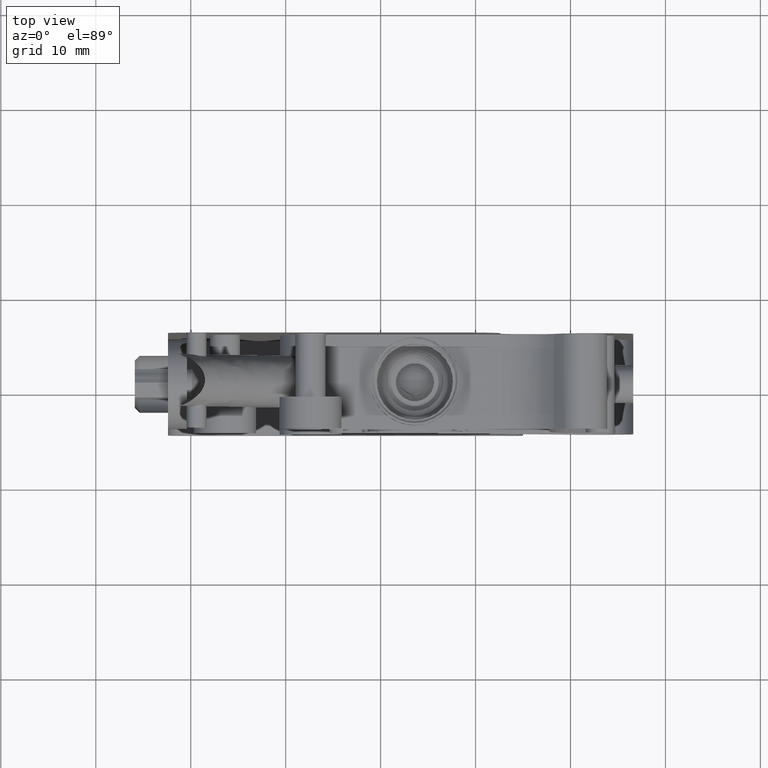
[diagram: clean part render]
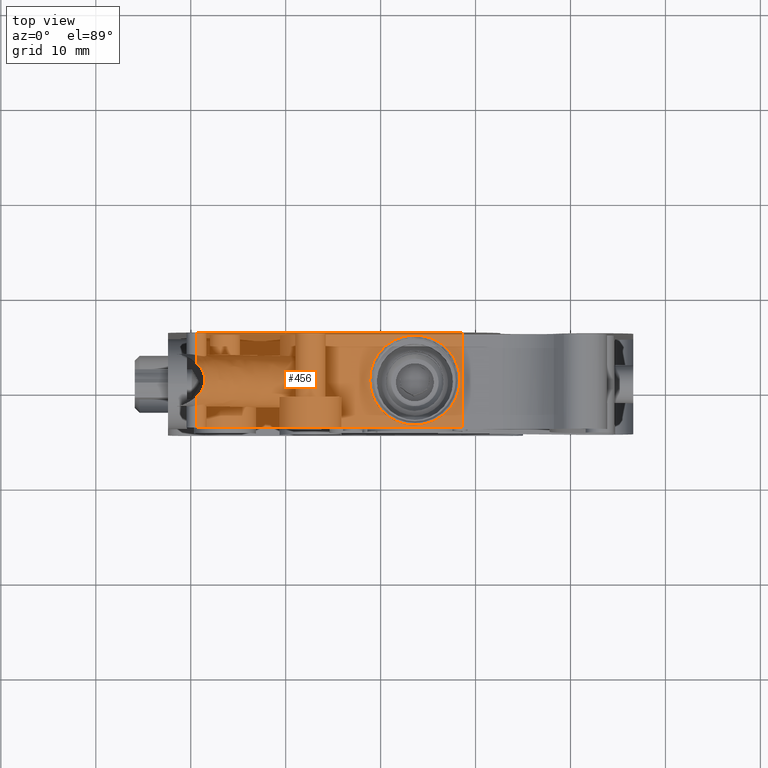
[diagram: same view with one face highlighted and labeled with its STEP entity id]
A machine part, top view. The second image highlights one B-rep face of the part: STEP entity #456.
In plain terms, the highlighted face is a freeform B-spline surface patch.
Its self-contained STEP definition (entity closure, byte-faithful):
#265=FACE_BOUND('',#1035,.T.);
#456=ADVANCED_FACE('',(#737,#265),#10284,.T.);
#737=FACE_OUTER_BOUND('',#1034,.T.);
#1034=EDGE_LOOP('',(#1984,#1985,#1986,#1987,#1988,#1989));
#1035=EDGE_LOOP('',(#1990,#1991,#1992));
#1984=ORIENTED_EDGE('',*,*,#8693,.F.);
#1985=ORIENTED_EDGE('',*,*,#8708,.F.);
#1986=ORIENTED_EDGE('',*,*,#8713,.T.);
#1987=ORIENTED_EDGE('',*,*,#8714,.T.);
#1988=ORIENTED_EDGE('',*,*,#8715,.T.);
#1989=ORIENTED_EDGE('',*,*,#8710,.F.);
#1990=ORIENTED_EDGE('',*,*,#8716,.T.);
#1991=ORIENTED_EDGE('',*,*,#8717,.T.);
#1992=ORIENTED_EDGE('',*,*,#8718,.T.);
#3475=PCURVE('',#10423,#4998);
#3500=PCURVE('',#10425,#5023);
#3504=PCURVE('',#10426,#5027);
#3507=PCURVE('',#10284,#5030);
#3508=PCURVE('',#10284,#5031);
#3509=PCURVE('',#10284,#5032);
#3510=PCURVE('',#10284,#5033);
#3511=PCURVE('',#10284,#5034);
#3512=PCURVE('',#10284,#5035);
#3513=PCURVE('',#10284,#5036);
#3514=PCURVE('',#10284,#5037);
#3515=PCURVE('',#10284,#5038);
#3582=PCURVE('',#10436,#5105);
#3585=PCURVE('',#10437,#5108);
#3590=PCURVE('',#10437,#5113);
#3670=PCURVE('',#10445,#5193);
#3786=PCURVE('',#10307,#5309);
#3862=PCURVE('',#10308,#5385);
#4998=DEFINITIONAL_REPRESENTATION('',(#6658),#38234);
#5023=DEFINITIONAL_REPRESENTATION('',(#6696),#38234);
#5027=DEFINITIONAL_REPRESENTATION('',(#6702),#38234);
#5030=DEFINITIONAL_REPRESENTATION('',(#9364),#38234);
#5031=DEFINITIONAL_REPRESENTATION('',(#6706),#38234);
#5032=DEFINITIONAL_REPRESENTATION('',(#6708),#38234);
#5033=DEFINITIONAL_REPRESENTATION('',(#6710),#38234);
#5034=DEFINITIONAL_REPRESENTATION('',(#6712),#38234);
#5035=DEFINITIONAL_REPRESENTATION('',(#6713),#38234);
#5036=DEFINITIONAL_REPRESENTATION('',(#9366),#38234);
#5037=DEFINITIONAL_REPRESENTATION('',(#9368),#38234);
#5038=DEFINITIONAL_REPRESENTATION('',(#9370),#38234);
#5105=DEFINITIONAL_REPRESENTATION('',(#6787),#38234);
#5108=DEFINITIONAL_REPRESENTATION('',(#6791),#38234);
#5113=DEFINITIONAL_REPRESENTATION('',(#6796),#38234);
#5193=DEFINITIONAL_REPRESENTATION('',(#6895),#38234);
#5309=DEFINITIONAL_REPRESENTATION('',(#7031),#38234);
#5385=DEFINITIONAL_REPRESENTATION('',(#7058),#38234);
#6658=B_SPLINE_CURVE_WITH_KNOTS('',3,(#17195,#17196,#17197,#17198,#17199,
#17200,#17201,#17202,#17203,#17204,#17205,#17206,#17207,#17208),
 .UNSPECIFIED.,.F.,.F.,(4,2,2,2,2,2,4),(-23.1629799765167,-22.426872541957,
-21.808255514192,-20.8573078773078,-19.9063602404228,-19.2877432126578,
-18.5516357780982),.UNSPECIFIED.);
#6695=B_SPLINE_CURVE_WITH_KNOTS('',1,(#17471,#17472),.UNSPECIFIED.,.F.,
 .F.,(2,2),(-3.2502177992676,0.),.UNSPECIFIED.);
#6696=B_SPLINE_CURVE_WITH_KNOTS('',1,(#17473,#17474),.UNSPECIFIED.,.F.,
 .F.,(2,2),(-3.2502177992676,0.),.UNSPECIFIED.);
#6701=B_SPLINE_CURVE_WITH_KNOTS('',1,(#17507,#17508),.UNSPECIFIED.,.F.,
 .F.,(2,2),(-3.2502177992676,0.),.UNSPECIFIED.);
#6702=B_SPLINE_CURVE_WITH_KNOTS('',1,(#17509,#17510),.UNSPECIFIED.,.F.,
 .F.,(2,2),(-3.2502177992676,0.),.UNSPECIFIED.);
#6706=B_SPLINE_CURVE_WITH_KNOTS('',1,(#17525,#17526),.UNSPECIFIED.,.F.,
 .F.,(2,2),(-3.2502177992676,0.),.UNSPECIFIED.);
#6707=B_SPLINE_CURVE_WITH_KNOTS('',1,(#17527,#17528),.UNSPECIFIED.,.F.,
 .F.,(2,2),(0.,28.),.UNSPECIFIED.);
#6708=B_SPLINE_CURVE_WITH_KNOTS('',1,(#17529,#17530),.UNSPECIFIED.,.F.,
 .F.,(2,2),(0.,28.),.UNSPECIFIED.);
#6709=B_SPLINE_CURVE_WITH_KNOTS('',1,(#17531,#17532),.UNSPECIFIED.,.F.,
 .F.,(2,2),(-10.,0.),.UNSPECIFIED.);
#6710=B_SPLINE_CURVE_WITH_KNOTS('',1,(#17533,#17534),.UNSPECIFIED.,.F.,
 .F.,(2,2),(-10.,0.),.UNSPECIFIED.);
#6711=B_SPLINE_CURVE_WITH_KNOTS('',1,(#17535,#17536),.UNSPECIFIED.,.F.,
 .F.,(2,2),(0.,28.),.UNSPECIFIED.);
#6712=B_SPLINE_CURVE_WITH_KNOTS('',1,(#17537,#17538),.UNSPECIFIED.,.F.,
 .F.,(2,2),(0.,28.),.UNSPECIFIED.);
#6713=B_SPLINE_CURVE_WITH_KNOTS('',1,(#17539,#17540),.UNSPECIFIED.,.F.,
 .F.,(2,2),(-3.2502177992676,0.),.UNSPECIFIED.);
#6787=B_SPLINE_CURVE_WITH_KNOTS('',1,(#18002,#18003),.UNSPECIFIED.,.F.,
 .F.,(2,2),(0.,7.46128255227576),.UNSPECIFIED.);
#6791=B_SPLINE_CURVE_WITH_KNOTS('',1,(#18010,#18011),.UNSPECIFIED.,.F.,
 .F.,(2,2),(7.46128255227576,14.9225651045515),.UNSPECIFIED.);
#6796=B_SPLINE_CURVE_WITH_KNOTS('',1,(#18020,#18021),.UNSPECIFIED.,.F.,
 .F.,(2,2),(0.,14.9225651045515),.UNSPECIFIED.);
#6895=B_SPLINE_CURVE_WITH_KNOTS('',1,(#18533,#18534),.UNSPECIFIED.,.F.,
 .F.,(2,2),(-10.,0.),.UNSPECIFIED.);
#7031=B_SPLINE_CURVE_WITH_KNOTS('',1,(#18957,#18958),.UNSPECIFIED.,.F.,
 .F.,(2,2),(0.,28.),.UNSPECIFIED.);
#7058=B_SPLINE_CURVE_WITH_KNOTS('',1,(#19218,#19219),.UNSPECIFIED.,.F.,
 .F.,(2,2),(0.,28.),.UNSPECIFIED.);
#7889=SURFACE_CURVE('',#9360,(#3475,#3507),.PCURVE_S1.);
#7904=SURFACE_CURVE('',#6695,(#3500,#3508),.PCURVE_S1.);
#7906=SURFACE_CURVE('',#6701,(#3504,#3512),.PCURVE_S1.);
#7909=SURFACE_CURVE('',#6707,(#3509,#3862),.PCURVE_S1.);
#7910=SURFACE_CURVE('',#6709,(#3510,#3670),.PCURVE_S1.);
#7911=SURFACE_CURVE('',#6711,(#3511,#3786),.PCURVE_S1.);
#7912=SURFACE_CURVE('',#9365,(#3513,#3582),.PCURVE_S1.);
#7913=SURFACE_CURVE('',#9367,(#3514,#3585),.PCURVE_S1.);
#7914=SURFACE_CURVE('',#9369,(#3515,#3590),.PCURVE_S1.);
#8693=EDGE_CURVE('',#9997,#9998,#7889,.T.);
#8708=EDGE_CURVE('',#10005,#9997,#7904,.T.);
#8710=EDGE_CURVE('',#9998,#10006,#7906,.T.);
#8713=EDGE_CURVE('',#10005,#10008,#7909,.T.);
#8714=EDGE_CURVE('',#10008,#10009,#7910,.T.);
#8715=EDGE_CURVE('',#10009,#10006,#7911,.T.);
#8716=EDGE_CURVE('',#10011,#10044,#7912,.T.);
#8717=EDGE_CURVE('',#10044,#10010,#7913,.T.);
#8718=EDGE_CURVE('',#10010,#10011,#7914,.T.);
#9360=(
BOUNDED_CURVE()
B_SPLINE_CURVE(2,(#17190,#17191,#17192,#17193,#17194),.UNSPECIFIED.,.F.,
 .F.)
B_SPLINE_CURVE_WITH_KNOTS((3,2,3),(-23.1629799765167,-20.8573078773074,
-18.5516357780982),.UNSPECIFIED.)
CURVE()
GEOMETRIC_REPRESENTATION_ITEM()
RATIONAL_B_SPLINE_CURVE((1.,0.941130847824722,1.,0.941130847824723,1.))
REPRESENTATION_ITEM('')
);
#9364=(
BOUNDED_CURVE()
B_SPLINE_CURVE(2,(#17520,#17521,#17522,#17523,#17524),.UNSPECIFIED.,.F.,
 .F.)
B_SPLINE_CURVE_WITH_KNOTS((3,2,3),(-23.1629799765167,-20.8573078773074,
-18.5516357780982),.UNSPECIFIED.)
CURVE()
GEOMETRIC_REPRESENTATION_ITEM()
RATIONAL_B_SPLINE_CURVE((1.,0.941130847824722,1.,0.941130847824723,1.))
REPRESENTATION_ITEM('')
);
#9365=(
BOUNDED_CURVE()
B_SPLINE_CURVE(2,(#17541,#17542,#17543),.UNSPECIFIED.,.F.,.F.)
B_SPLINE_CURVE_WITH_KNOTS((3,3),(0.,7.46128255227576),.UNSPECIFIED.)
CURVE()
GEOMETRIC_REPRESENTATION_ITEM()
RATIONAL_B_SPLINE_CURVE((1.,0.707106781186547,1.))
REPRESENTATION_ITEM('')
);
#9366=(
BOUNDED_CURVE()
B_SPLINE_CURVE(2,(#17544,#17545,#17546),.UNSPECIFIED.,.F.,.F.)
B_SPLINE_CURVE_WITH_KNOTS((3,3),(0.,7.46128255227576),.UNSPECIFIED.)
CURVE()
GEOMETRIC_REPRESENTATION_ITEM()
RATIONAL_B_SPLINE_CURVE((1.,0.707106781186548,1.))
REPRESENTATION_ITEM('')
);
#9367=(
BOUNDED_CURVE()
B_SPLINE_CURVE(2,(#17547,#17548,#17549),.UNSPECIFIED.,.F.,.F.)
B_SPLINE_CURVE_WITH_KNOTS((3,3),(7.46128255227576,14.9225651045515),
 .UNSPECIFIED.)
CURVE()
GEOMETRIC_REPRESENTATION_ITEM()
RATIONAL_B_SPLINE_CURVE((1.,0.707106781186548,1.))
REPRESENTATION_ITEM('')
);
#9368=(
BOUNDED_CURVE()
B_SPLINE_CURVE(2,(#17550,#17551,#17552),.UNSPECIFIED.,.F.,.F.)
B_SPLINE_CURVE_WITH_KNOTS((3,3),(7.46128255227576,14.9225651045515),
 .UNSPECIFIED.)
CURVE()
GEOMETRIC_REPRESENTATION_ITEM()
RATIONAL_B_SPLINE_CURVE((1.,0.707106781186547,1.))
REPRESENTATION_ITEM('')
);
#9369=(
BOUNDED_CURVE()
B_SPLINE_CURVE(2,(#17553,#17554,#17555,#17556,#17557),.UNSPECIFIED.,.F.,
 .F.)
B_SPLINE_CURVE_WITH_KNOTS((3,2,3),(0.,7.46128255227576,14.9225651045515),
 .UNSPECIFIED.)
CURVE()
GEOMETRIC_REPRESENTATION_ITEM()
RATIONAL_B_SPLINE_CURVE((1.,0.707106781186548,1.,0.707106781186548,1.))
REPRESENTATION_ITEM('')
);
#9370=(
BOUNDED_CURVE()
B_SPLINE_CURVE(2,(#17558,#17559,#17560,#17561,#17562),.UNSPECIFIED.,.F.,
 .F.)
B_SPLINE_CURVE_WITH_KNOTS((3,2,3),(0.,7.46128255227576,14.9225651045515),
 .UNSPECIFIED.)
CURVE()
GEOMETRIC_REPRESENTATION_ITEM()
RATIONAL_B_SPLINE_CURVE((1.,0.707106781186548,1.,0.707106781186548,1.))
REPRESENTATION_ITEM('')
);
#9997=VERTEX_POINT('',#13557);
#9998=VERTEX_POINT('',#13558);
#10005=VERTEX_POINT('',#13565);
#10006=VERTEX_POINT('',#13566);
#10008=VERTEX_POINT('',#13568);
#10009=VERTEX_POINT('',#13569);
#10010=VERTEX_POINT('',#13570);
#10011=VERTEX_POINT('',#13571);
#10044=VERTEX_POINT('',#13604);
#10284=B_SPLINE_SURFACE_WITH_KNOTS('',1,1,((#12660,#12661),(#12662,#12663)),
 .UNSPECIFIED.,.F.,.F.,.F.,(2,2),(2,2),(-1.12,11.12),(-2.92000000000002,
30.92),.UNSPECIFIED.);
#10307=B_SPLINE_SURFACE_WITH_KNOTS('',1,1,((#13256,#13257),(#13258,#13259)),
 .UNSPECIFIED.,.F.,.F.,.F.,(2,2),(2,2),(-31.1921061117909,31.4478938882091),
(-31.7014055422227,27.3385944577773),.UNSPECIFIED.);
#10308=B_SPLINE_SURFACE_WITH_KNOTS('',1,1,((#13260,#13261),(#13262,#13263)),
 .UNSPECIFIED.,.F.,.F.,.F.,(2,2),(2,2),(-31.7014055422227,27.3385944577773),
(-31.1921061117909,31.4478938882091),.UNSPECIFIED.);
#10423=(
BOUNDED_SURFACE()
B_SPLINE_SURFACE(1,2,((#12588,#12589,#12590,#12591,#12592,#12593,#12594,
#12595,#12596),(#12597,#12598,#12599,#12600,#12601,#12602,#12603,#12604,
#12605)),.UNSPECIFIED.,.F.,.F.,.F.)
B_SPLINE_SURFACE_WITH_KNOTS((2,2),(3,2,2,2,3),(0.,27.4477942498307),(0.,
1.5707963267949,3.14159265358979,4.71238898038469,6.28318530717959),
 .UNSPECIFIED.)
GEOMETRIC_REPRESENTATION_ITEM()
RATIONAL_B_SPLINE_SURFACE(((1.,0.707106781186548,1.,0.707106781186548,1.,
0.707106781186548,1.,0.707106781186548,1.),(1.,0.707106781186548,1.,0.707106781186548,
1.,0.707106781186548,1.,0.707106781186548,1.)))
REPRESENTATION_ITEM('')
SURFACE()
);
#10425=(
BOUNDED_SURFACE()
B_SPLINE_SURFACE(2,1,((#12624,#12625),(#12626,#12627),(#12628,#12629),(#12630,
#12631),(#12632,#12633),(#12634,#12635),(#12636,#12637),(#12638,#12639),
(#12640,#12641)),.UNSPECIFIED.,.T.,.F.,.F.)
B_SPLINE_SURFACE_WITH_KNOTS((3,2,2,2,3),(2,2),(0.,1.5707963267949,3.14159265358979,
4.71238898038469,6.28318530717959),(0.,4.14026135912113),.UNSPECIFIED.)
GEOMETRIC_REPRESENTATION_ITEM()
RATIONAL_B_SPLINE_SURFACE(((1.,1.),(0.707106781186548,0.707106781186548),
(1.,1.),(0.707106781186548,0.707106781186548),(1.,1.),(0.707106781186548,
0.707106781186548),(1.,1.),(0.707106781186548,0.707106781186548),(1.,1.)))
REPRESENTATION_ITEM('')
SURFACE()
);
#10426=(
BOUNDED_SURFACE()
B_SPLINE_SURFACE(2,1,((#12642,#12643),(#12644,#12645),(#12646,#12647),(#12648,
#12649),(#12650,#12651),(#12652,#12653),(#12654,#12655),(#12656,#12657),
(#12658,#12659)),.UNSPECIFIED.,.T.,.F.,.F.)
B_SPLINE_SURFACE_WITH_KNOTS((3,2,2,2,3),(2,2),(0.,1.5707963267949,3.14159265358979,
4.71238898038469,6.28318530717959),(0.,4.14026135912113),.UNSPECIFIED.)
GEOMETRIC_REPRESENTATION_ITEM()
RATIONAL_B_SPLINE_SURFACE(((1.,1.),(0.707106781186548,0.707106781186548),
(1.,1.),(0.707106781186548,0.707106781186548),(1.,1.),(0.707106781186548,
0.707106781186548),(1.,1.),(0.707106781186548,0.707106781186548),(1.,1.)))
REPRESENTATION_ITEM('')
SURFACE()
);
#10436=(
BOUNDED_SURFACE()
B_SPLINE_SURFACE(1,2,((#12838,#12839,#12840,#12841,#12842,#12843,#12844,
#12845,#12846),(#12847,#12848,#12849,#12850,#12851,#12852,#12853,#12854,
#12855)),.UNSPECIFIED.,.F.,.F.,.F.)
B_SPLINE_SURFACE_WITH_KNOTS((2,2),(3,2,2,2,3),(0.,2.64000000000003),(0.,
1.5707963267949,3.14159265358979,4.71238898038469,6.28318530717959),
 .UNSPECIFIED.)
GEOMETRIC_REPRESENTATION_ITEM()
RATIONAL_B_SPLINE_SURFACE(((1.,0.707106781186548,1.,0.707106781186548,1.,
0.707106781186548,1.,0.707106781186548,1.),(1.,0.707106781186548,1.,0.707106781186548,
1.,0.707106781186548,1.,0.707106781186548,1.)))
REPRESENTATION_ITEM('')
SURFACE()
);
#10437=(
BOUNDED_SURFACE()
B_SPLINE_SURFACE(1,2,((#12856,#12857,#12858,#12859,#12860,#12861,#12862,
#12863,#12864),(#12865,#12866,#12867,#12868,#12869,#12870,#12871,#12872,
#12873)),.UNSPECIFIED.,.F.,.F.,.F.)
B_SPLINE_SURFACE_WITH_KNOTS((2,2),(3,2,2,2,3),(0.,2.64000000000003),(0.,
1.5707963267949,3.14159265358979,4.71238898038469,6.28318530717959),
 .UNSPECIFIED.)
GEOMETRIC_REPRESENTATION_ITEM()
RATIONAL_B_SPLINE_SURFACE(((1.,0.707106781186548,1.,0.707106781186548,1.,
0.707106781186548,1.,0.707106781186548,1.),(1.,0.707106781186548,1.,0.707106781186548,
1.,0.707106781186548,1.,0.707106781186548,1.)))
REPRESENTATION_ITEM('')
SURFACE()
);
#10445=(
BOUNDED_SURFACE()
B_SPLINE_SURFACE(2,1,((#13028,#13029),(#13030,#13031),(#13032,#13033),(#13034,
#13035),(#13036,#13037),(#13038,#13039),(#13040,#13041),(#13042,#13043),
(#13044,#13045)),.UNSPECIFIED.,.T.,.F.,.F.)
B_SPLINE_SURFACE_WITH_KNOTS((3,2,2,2,3),(2,2),(0.,1.5707963267949,3.14159265358979,
4.71238898038469,6.28318530717959),(0.,12.24),.UNSPECIFIED.)
GEOMETRIC_REPRESENTATION_ITEM()
RATIONAL_B_SPLINE_SURFACE(((1.,1.),(0.707106781186548,0.707106781186548),
(1.,1.),(0.707106781186548,0.707106781186548),(1.,1.),(0.707106781186548,
0.707106781186548),(1.,1.),(0.707106781186548,0.707106781186548),(1.,1.)))
REPRESENTATION_ITEM('')
SURFACE()
);
#12588=CARTESIAN_POINT('',(-21.3832498208714,40.8331285187102,49.5367132204772));
#12589=CARTESIAN_POINT('',(-21.3832498208714,40.8331285187102,52.2867132204772));
#12590=CARTESIAN_POINT('',(-19.4387061726084,42.7776721669732,52.2867132204772));
#12591=CARTESIAN_POINT('',(-17.4941625243454,44.7222158152362,52.2867132204772));
#12592=CARTESIAN_POINT('',(-17.4941625243454,44.7222158152362,49.5367132204772));
#12593=CARTESIAN_POINT('',(-17.4941625243454,44.7222158152362,46.7867132204772));
#12594=CARTESIAN_POINT('',(-19.4387061726084,42.7776721669732,46.7867132204772));
#12595=CARTESIAN_POINT('',(-21.3832498208714,40.8331285187102,46.7867132204772));
#12596=CARTESIAN_POINT('',(-21.3832498208714,40.8331285187102,49.5367132204772));
#12597=CARTESIAN_POINT('',(-40.7917712635399,60.2416499613786,49.5367132204772));
#12598=CARTESIAN_POINT('',(-40.7917712635398,60.2416499613787,52.2867132204772));
#12599=CARTESIAN_POINT('',(-38.8472276152769,62.1861936096416,52.2867132204771));
#12600=CARTESIAN_POINT('',(-36.9026839670139,64.1307372579046,52.2867132204771));
#12601=CARTESIAN_POINT('',(-36.9026839670139,64.1307372579046,49.5367132204772));
#12602=CARTESIAN_POINT('',(-36.902683967014,64.1307372579046,46.7867132204772));
#12603=CARTESIAN_POINT('',(-38.8472276152769,62.1861936096416,46.7867132204772));
#12604=CARTESIAN_POINT('',(-40.7917712635399,60.2416499613786,46.7867132204773));
#12605=CARTESIAN_POINT('',(-40.7917712635399,60.2416499613786,49.5367132204772));
#12624=CARTESIAN_POINT('',(-31.1297237919326,57.4689438588719,50.8414736412828));
#12625=CARTESIAN_POINT('',(-31.1297237919326,57.4689438588719,54.981735000404));
#12626=CARTESIAN_POINT('',(-31.1297237919326,60.4689438588719,50.8414736412828));
#12627=CARTESIAN_POINT('',(-31.1297237919326,60.4689438588719,54.981735000404));
#12628=CARTESIAN_POINT('',(-34.1297237919326,60.4689438588719,50.8414736412828));
#12629=CARTESIAN_POINT('',(-34.1297237919326,60.4689438588719,54.981735000404));
#12630=CARTESIAN_POINT('',(-37.1297237919326,60.4689438588719,50.8414736412828));
#12631=CARTESIAN_POINT('',(-37.1297237919326,60.4689438588719,54.981735000404));
#12632=CARTESIAN_POINT('',(-37.1297237919326,57.4689438588719,50.8414736412828));
#12633=CARTESIAN_POINT('',(-37.1297237919326,57.4689438588719,54.981735000404));
#12634=CARTESIAN_POINT('',(-37.1297237919326,54.4689438588719,50.8414736412828));
#12635=CARTESIAN_POINT('',(-37.1297237919326,54.4689438588719,54.981735000404));
#12636=CARTESIAN_POINT('',(-34.1297237919326,54.4689438588719,50.8414736412828));
#12637=CARTESIAN_POINT('',(-34.1297237919326,54.4689438588719,54.981735000404));
#12638=CARTESIAN_POINT('',(-31.1297237919326,54.4689438588719,50.8414736412828));
#12639=CARTESIAN_POINT('',(-31.1297237919326,54.4689438588719,54.981735000404));
#12640=CARTESIAN_POINT('',(-31.1297237919326,57.4689438588719,50.8414736412828));
#12641=CARTESIAN_POINT('',(-31.1297237919326,57.4689438588719,54.981735000404));
#12642=CARTESIAN_POINT('',(-31.1297237919326,57.4689438588719,44.0916914405504));
#12643=CARTESIAN_POINT('',(-31.1297237919326,57.4689438588719,48.2319527996716));
#12644=CARTESIAN_POINT('',(-31.1297237919326,60.4689438588719,44.0916914405504));
#12645=CARTESIAN_POINT('',(-31.1297237919326,60.4689438588719,48.2319527996716));
#12646=CARTESIAN_POINT('',(-34.1297237919326,60.4689438588719,44.0916914405504));
#12647=CARTESIAN_POINT('',(-34.1297237919326,60.4689438588719,48.2319527996716));
#12648=CARTESIAN_POINT('',(-37.1297237919326,60.4689438588719,44.0916914405504));
#12649=CARTESIAN_POINT('',(-37.1297237919326,60.4689438588719,48.2319527996716));
#12650=CARTESIAN_POINT('',(-37.1297237919326,57.4689438588719,44.0916914405504));
#12651=CARTESIAN_POINT('',(-37.1297237919326,57.4689438588719,48.2319527996716));
#12652=CARTESIAN_POINT('',(-37.1297237919326,54.4689438588719,44.0916914405504));
#12653=CARTESIAN_POINT('',(-37.1297237919326,54.4689438588719,48.2319527996716));
#12654=CARTESIAN_POINT('',(-34.1297237919326,54.4689438588719,44.0916914405504));
#12655=CARTESIAN_POINT('',(-34.1297237919326,54.4689438588719,48.2319527996716));
#12656=CARTESIAN_POINT('',(-31.1297237919326,54.4689438588719,44.0916914405504));
#12657=CARTESIAN_POINT('',(-31.1297237919326,54.4689438588719,48.2319527996716));
#12658=CARTESIAN_POINT('',(-31.1297237919326,57.4689438588719,44.0916914405504));
#12659=CARTESIAN_POINT('',(-31.1297237919326,57.4689438588719,48.2319527996716));
#12660=CARTESIAN_POINT('',(-37.0497237919326,60.4689438588719,43.4167132204772));
#12661=CARTESIAN_POINT('',(-3.20972379193263,60.4689438588719,43.4167132204772));
#12662=CARTESIAN_POINT('',(-37.0497237919326,60.4689438588719,55.6567132204772));
#12663=CARTESIAN_POINT('',(-3.20972379193262,60.4689438588719,55.6567132204772));
#12838=CARTESIAN_POINT('',(-11.1297237919326,58.1489438588719,54.2867132204772));
#12839=CARTESIAN_POINT('',(-6.3797237919326,58.1489438588719,54.2867132204772));
#12840=CARTESIAN_POINT('',(-6.3797237919326,58.1489438588719,49.5367132204772));
#12841=CARTESIAN_POINT('',(-6.3797237919326,58.1489438588719,44.7867132204772));
#12842=CARTESIAN_POINT('',(-11.1297237919326,58.1489438588719,44.7867132204772));
#12843=CARTESIAN_POINT('',(-15.8797237919326,58.1489438588719,44.7867132204772));
#12844=CARTESIAN_POINT('',(-15.8797237919326,58.1489438588719,49.5367132204772));
#12845=CARTESIAN_POINT('',(-15.8797237919326,58.1489438588719,54.2867132204772));
#12846=CARTESIAN_POINT('',(-11.1297237919326,58.1489438588719,54.2867132204772));
#12847=CARTESIAN_POINT('',(-11.1297237919326,60.7889438588719,54.2867132204772));
#12848=CARTESIAN_POINT('',(-6.3797237919326,60.7889438588719,54.2867132204772));
#12849=CARTESIAN_POINT('',(-6.3797237919326,60.7889438588719,49.5367132204772));
#12850=CARTESIAN_POINT('',(-6.3797237919326,60.7889438588719,44.7867132204772));
#12851=CARTESIAN_POINT('',(-11.1297237919326,60.7889438588719,44.7867132204772));
#12852=CARTESIAN_POINT('',(-15.8797237919326,60.7889438588719,44.7867132204772));
#12853=CARTESIAN_POINT('',(-15.8797237919326,60.7889438588719,49.5367132204772));
#12854=CARTESIAN_POINT('',(-15.8797237919326,60.7889438588719,54.2867132204772));
#12855=CARTESIAN_POINT('',(-11.1297237919326,60.7889438588719,54.2867132204772));
#12856=CARTESIAN_POINT('',(-11.1297237919326,58.1489438588719,54.2867132204772));
#12857=CARTESIAN_POINT('',(-6.3797237919326,58.1489438588719,54.2867132204772));
#12858=CARTESIAN_POINT('',(-6.3797237919326,58.1489438588719,49.5367132204772));
#12859=CARTESIAN_POINT('',(-6.3797237919326,58.1489438588719,44.7867132204772));
#12860=CARTESIAN_POINT('',(-11.1297237919326,58.1489438588719,44.7867132204772));
#12861=CARTESIAN_POINT('',(-15.8797237919326,58.1489438588719,44.7867132204772));
#12862=CARTESIAN_POINT('',(-15.8797237919326,58.1489438588719,49.5367132204772));
#12863=CARTESIAN_POINT('',(-15.8797237919326,58.1489438588719,54.2867132204772));
#12864=CARTESIAN_POINT('',(-11.1297237919326,58.1489438588719,54.2867132204772));
#12865=CARTESIAN_POINT('',(-11.1297237919326,60.7889438588719,54.2867132204772));
#12866=CARTESIAN_POINT('',(-6.3797237919326,60.7889438588719,54.2867132204772));
#12867=CARTESIAN_POINT('',(-6.3797237919326,60.7889438588719,49.5367132204772));
#12868=CARTESIAN_POINT('',(-6.3797237919326,60.7889438588719,44.7867132204772));
#12869=CARTESIAN_POINT('',(-11.1297237919326,60.7889438588719,44.7867132204772));
#12870=CARTESIAN_POINT('',(-15.8797237919326,60.7889438588719,44.7867132204772));
#12871=CARTESIAN_POINT('',(-15.8797237919326,60.7889438588719,49.5367132204772));
#12872=CARTESIAN_POINT('',(-15.8797237919326,60.7889438588719,54.2867132204772));
#12873=CARTESIAN_POINT('',(-11.1297237919326,60.7889438588719,54.2867132204772));
#13028=CARTESIAN_POINT('',(-10.1297237919326,56.4689438588719,43.4167132204772));
#13029=CARTESIAN_POINT('',(-10.1297237919326,56.4689438588719,55.6567132204772));
#13030=CARTESIAN_POINT('',(-10.1297237919326,52.4689438588719,43.4167132204772));
#13031=CARTESIAN_POINT('',(-10.1297237919326,52.4689438588719,55.6567132204772));
#13032=CARTESIAN_POINT('',(-6.12972379193264,52.4689438588719,43.4167132204772));
#13033=CARTESIAN_POINT('',(-6.12972379193264,52.4689438588719,55.6567132204772));
#13034=CARTESIAN_POINT('',(-2.12972379193264,52.4689438588719,43.4167132204772));
#13035=CARTESIAN_POINT('',(-2.12972379193264,52.4689438588719,55.6567132204772));
#13036=CARTESIAN_POINT('',(-2.12972379193264,56.4689438588719,43.4167132204772));
#13037=CARTESIAN_POINT('',(-2.12972379193263,56.4689438588719,55.6567132204772));
#13038=CARTESIAN_POINT('',(-2.12972379193264,60.4689438588719,43.4167132204772));
#13039=CARTESIAN_POINT('',(-2.12972379193261,60.4689438588719,55.6567132204772));
#13040=CARTESIAN_POINT('',(-6.12972379193264,60.4689438588719,43.4167132204772));
#13041=CARTESIAN_POINT('',(-6.12972379193261,60.4689438588719,55.6567132204772));
#13042=CARTESIAN_POINT('',(-10.1297237919326,60.4689438588719,43.4167132204772));
#13043=CARTESIAN_POINT('',(-10.1297237919326,60.4689438588719,55.6567132204772));
#13044=CARTESIAN_POINT('',(-10.1297237919326,56.4689438588719,43.4167132204772));
#13045=CARTESIAN_POINT('',(-10.1297237919326,56.4689438588719,55.6567132204772));
#13256=CARTESIAN_POINT('',(-42.1497237919326,3.1489438588719,44.5367132204772));
#13257=CARTESIAN_POINT('',(16.8902762080674,3.1489438588719,44.5367132204771));
#13258=CARTESIAN_POINT('',(-42.1497237919326,65.7889438588719,44.5367132204773));
#13259=CARTESIAN_POINT('',(16.8902762080674,65.7889438588719,44.5367132204772));
#13260=CARTESIAN_POINT('',(-42.1497237919326,3.1489438588719,54.5367132204772));
#13261=CARTESIAN_POINT('',(-42.1497237919326,65.7889438588719,54.5367132204773));
#13262=CARTESIAN_POINT('',(16.8902762080674,3.1489438588719,54.5367132204771));
#13263=CARTESIAN_POINT('',(16.8902762080674,65.7889438588719,54.5367132204772));
#13557=CARTESIAN_POINT('',(-34.1297237919326,60.4689438588719,51.2864954212096));
#13558=CARTESIAN_POINT('',(-34.1297237919326,60.4689438588719,47.7869310197448));
#13565=CARTESIAN_POINT('',(-34.1297237919326,60.4689438588719,54.5367132204772));
#13566=CARTESIAN_POINT('',(-34.1297237919326,60.4689438588719,44.5367132204772));
#13568=CARTESIAN_POINT('',(-6.12972379193263,60.4689438588719,54.5367132204772));
#13569=CARTESIAN_POINT('',(-6.12972379193264,60.4689438588719,44.5367132204772));
#13570=CARTESIAN_POINT('',(-15.8797237919326,60.4689438588719,49.5367132204772));
#13571=CARTESIAN_POINT('',(-6.3797237919326,60.4689438588719,49.5367132204772));
#13604=CARTESIAN_POINT('',(-11.1297237919326,60.4689438588719,54.2867132204772));
#17190=CARTESIAN_POINT('',(-34.1297237919326,60.4689438588719,51.2864954212096));
#17191=CARTESIAN_POINT('',(-33.2408905679812,60.4689438588719,50.5244790117148));
#17192=CARTESIAN_POINT('',(-33.2408905679812,60.4689438588719,49.5367132204772));
#17193=CARTESIAN_POINT('',(-33.2408905679812,60.4689438588719,48.5489474292396));
#17194=CARTESIAN_POINT('',(-34.1297237919326,60.4689438588719,47.7869310197448));
#17195=CARTESIAN_POINT('',(22.8977363623103,2.44701763258781));
#17196=CARTESIAN_POINT('',(22.8057488370413,2.49697226863309));
#17197=CARTESIAN_POINT('',(22.7163135380737,2.55010796497101));
#17198=CARTESIAN_POINT('',(22.5588402119401,2.66161908806962));
#17199=CARTESIAN_POINT('',(22.4915566990014,2.71604401050582));
#17200=CARTESIAN_POINT('',(22.3382323441217,2.88024999329402));
#17201=CARTESIAN_POINT('',(22.2692363623104,2.99772467940235));
#17202=CARTESIAN_POINT('',(22.2692363623104,3.28546062777729));
#17203=CARTESIAN_POINT('',(22.3382323441217,3.40293531388546));
#17204=CARTESIAN_POINT('',(22.4915566990014,3.56714129667374));
#17205=CARTESIAN_POINT('',(22.5588402119401,3.62156621910995));
#17206=CARTESIAN_POINT('',(22.7163135380737,3.73307734220855));
#17207=CARTESIAN_POINT('',(22.8057488370414,3.78621303854647));
#17208=CARTESIAN_POINT('',(22.8977363623103,3.83616767459175));
#17471=CARTESIAN_POINT('',(-34.1297237919326,60.4689438588719,54.5367132204772));
#17472=CARTESIAN_POINT('',(-34.1297237919326,60.4689438588719,51.2864954212096));
#17473=CARTESIAN_POINT('',(1.5707963267949,3.69523957919437));
#17474=CARTESIAN_POINT('',(1.5707963267949,0.445021779926769));
#17507=CARTESIAN_POINT('',(-34.1297237919326,60.4689438588719,47.7869310197448));
#17508=CARTESIAN_POINT('',(-34.1297237919326,60.4689438588719,44.5367132204772));
#17509=CARTESIAN_POINT('',(1.5707963267949,3.69523957919436));
#17510=CARTESIAN_POINT('',(1.5707963267949,0.445021779926769));
#17520=CARTESIAN_POINT('',(6.74978220073238,-1.34627430191276E-14));
#17521=CARTESIAN_POINT('',(5.98776579123761,0.888833223951399));
#17522=CARTESIAN_POINT('',(4.99999999999999,0.888833223951401));
#17523=CARTESIAN_POINT('',(4.0122342087624,0.888833223951407));
#17524=CARTESIAN_POINT('',(3.25021779926761,-1.0166661024728E-14));
#17525=CARTESIAN_POINT('',(10.,-9.41854932865355E-15));
#17526=CARTESIAN_POINT('',(6.74978220073238,-1.34627430191276E-14));
#17527=CARTESIAN_POINT('',(-34.1297237919326,60.4689438588719,54.5367132204772));
#17528=CARTESIAN_POINT('',(-6.12972379193263,60.4689438588719,54.5367132204772));
#17529=CARTESIAN_POINT('',(10.,-9.41854932865355E-15));
#17530=CARTESIAN_POINT('',(10.,28.));
#17531=CARTESIAN_POINT('',(-6.12972379193263,60.4689438588719,54.5367132204772));
#17532=CARTESIAN_POINT('',(-6.12972379193264,60.4689438588719,44.5367132204772));
#17533=CARTESIAN_POINT('',(10.,28.));
#17534=CARTESIAN_POINT('',(2.63719381202299E-14,28.));
#17535=CARTESIAN_POINT('',(-6.12972379193264,60.4689438588719,44.5367132204772));
#17536=CARTESIAN_POINT('',(-34.1297237919326,60.4689438588719,44.5367132204772));
#17537=CARTESIAN_POINT('',(2.63719381202299E-14,28.));
#17538=CARTESIAN_POINT('',(0.,0.));
#17539=CARTESIAN_POINT('',(3.25021779926761,-1.0166661024728E-14));
#17540=CARTESIAN_POINT('',(0.,0.));
#17541=CARTESIAN_POINT('',(-6.3797237919326,60.4689438588719,49.5367132204772));
#17542=CARTESIAN_POINT('',(-6.3797237919326,60.4689438588719,54.2867132204772));
#17543=CARTESIAN_POINT('',(-11.1297237919326,60.4689438588719,54.2867132204772));
#17544=CARTESIAN_POINT('',(5.00000000000003,27.75));
#17545=CARTESIAN_POINT('',(9.75000000000002,27.75));
#17546=CARTESIAN_POINT('',(9.75000000000002,23.));
#17547=CARTESIAN_POINT('',(-11.1297237919326,60.4689438588719,54.2867132204772));
#17548=CARTESIAN_POINT('',(-15.8797237919326,60.4689438588719,54.2867132204772));
#17549=CARTESIAN_POINT('',(-15.8797237919326,60.4689438588719,49.5367132204772));
#17550=CARTESIAN_POINT('',(9.75000000000002,23.));
#17551=CARTESIAN_POINT('',(9.75000000000002,18.25));
#17552=CARTESIAN_POINT('',(5.00000000000002,18.25));
#17553=CARTESIAN_POINT('',(-15.8797237919326,60.4689438588719,49.5367132204772));
#17554=CARTESIAN_POINT('',(-15.8797237919326,60.4689438588719,44.7867132204772));
#17555=CARTESIAN_POINT('',(-11.1297237919326,60.4689438588719,44.7867132204772));
#17556=CARTESIAN_POINT('',(-6.3797237919326,60.4689438588719,44.7867132204772));
#17557=CARTESIAN_POINT('',(-6.3797237919326,60.4689438588719,49.5367132204772));
#17558=CARTESIAN_POINT('',(5.00000000000002,18.25));
#17559=CARTESIAN_POINT('',(0.250000000000017,18.25));
#17560=CARTESIAN_POINT('',(0.250000000000021,23.));
#17561=CARTESIAN_POINT('',(0.250000000000027,27.75));
#17562=CARTESIAN_POINT('',(5.00000000000003,27.75));
#18002=CARTESIAN_POINT('',(2.32000000000002,1.5707963267949));
#18003=CARTESIAN_POINT('',(2.32000000000001,0.));
#18010=CARTESIAN_POINT('',(2.32000000000001,6.28318530717959));
#18011=CARTESIAN_POINT('',(2.32000000000002,4.71238898038469));
#18020=CARTESIAN_POINT('',(2.32000000000002,4.71238898038469));
#18021=CARTESIAN_POINT('',(2.32000000000002,1.5707963267949));
#18533=CARTESIAN_POINT('',(4.71238898038469,11.12));
#18534=CARTESIAN_POINT('',(4.71238898038469,1.12000000000004));
#18957=CARTESIAN_POINT('',(26.1278938882091,4.31859445777726));
#18958=CARTESIAN_POINT('',(26.1278938882091,-23.6814055422227));
#19218=CARTESIAN_POINT('',(-23.6814055422227,26.1278938882091));
#19219=CARTESIAN_POINT('',(4.31859445777727,26.1278938882091));
#38234=(
GEOMETRIC_REPRESENTATION_CONTEXT(2)
PARAMETRIC_REPRESENTATION_CONTEXT()
REPRESENTATION_CONTEXT('pspace','')
);